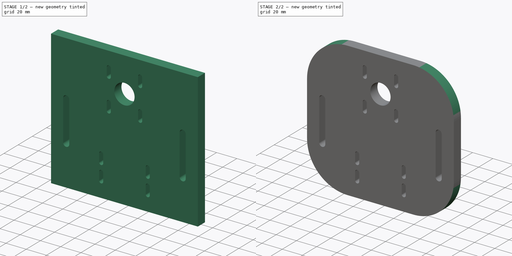
[diagram: build sequence overview — one tinted view per stage of 2, left to right]
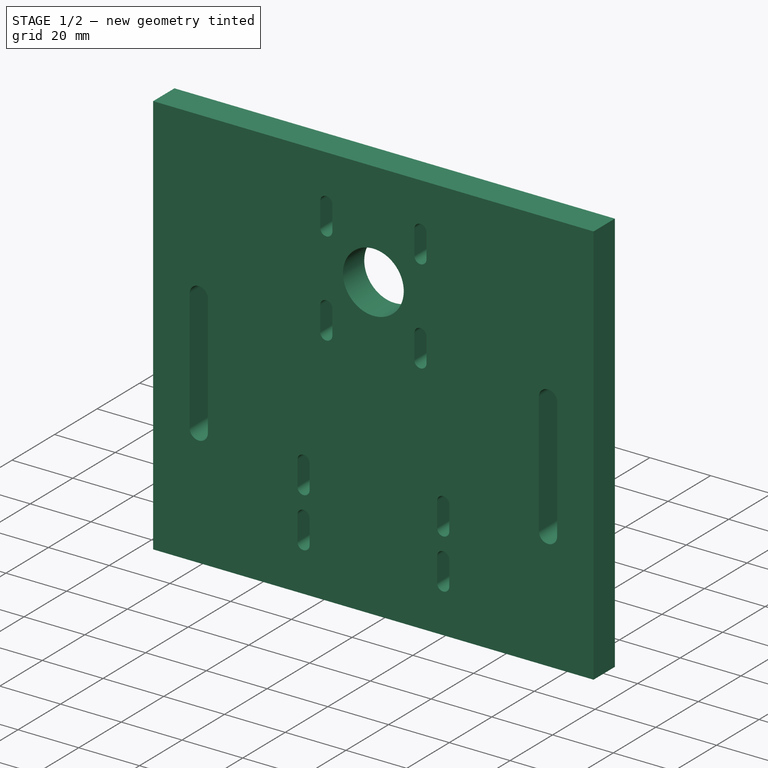
[diagram: stage 1 of 2 — iso view after this stage's code; geometry added in this stage tinted green]
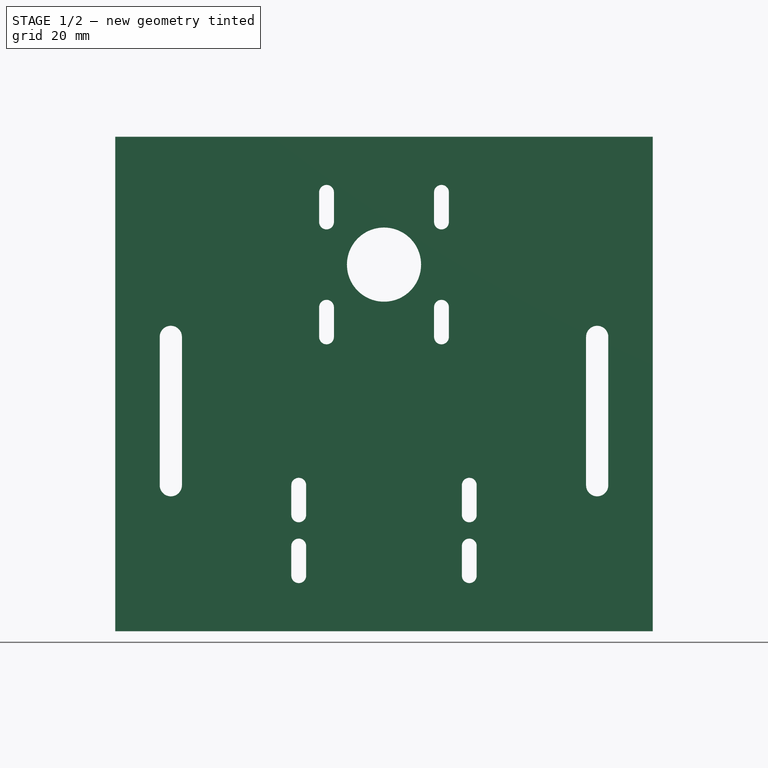
[diagram: stage 1 of 2 — front view after this stage's code; geometry added in this stage tinted green]
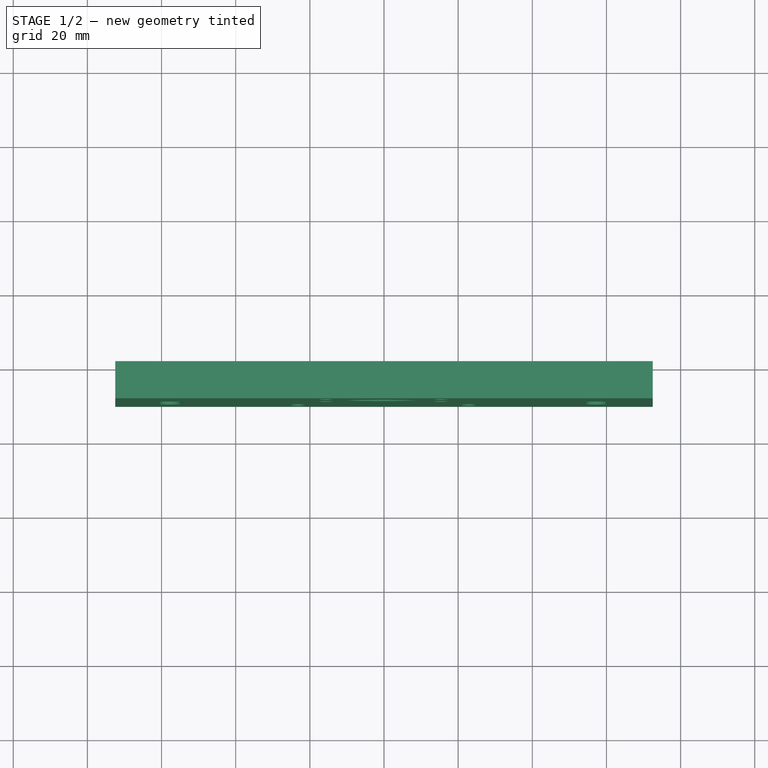
[diagram: stage 1 of 2 — top view after this stage's code; geometry added in this stage tinted green]
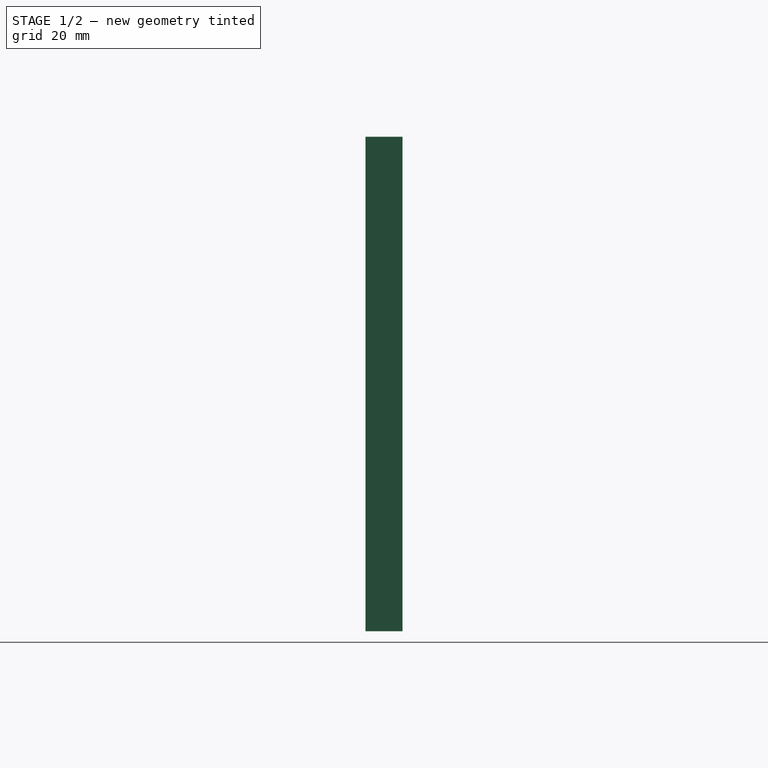
[diagram: stage 1 of 2 — right view after this stage's code; geometry added in this stage tinted green]
FCSTD DOCUMENT  (FreeCAD 0.19R22960 (Git))
Label: mounting-plate
License: All rights reserved
LicenseURL: http://en.wikipedia.org/wiki/All_rights_reserved
objects: Sketcher::SketchObject×1, Spreadsheet::Sheet×1, PartDesign::Pad×1, PartDesign::Fillet×1, PartDesign::Body×1, TechDraw::DrawSVGTemplate×1, TechDraw::DrawViewPart×1, TechDraw::DrawPage×1
note: 6 computed .brp shape members not serialized (recipe doc carries the construction recipe); baked Part::Feature solids carry a one-line shape summary decoded from their .brp

FEATURE [Sketcher::SketchObject] Sketch
  MapMode = 5
  Placement = pos=(0,0,0) rot=(1,0,0;1.5708rad)
  Support = -> [XZ_Plane]
  expr: Constraints[40] = Spreadsheet.nema_holes_dia
  expr: Constraints[50] = 31mm
  expr: Constraints[41] = Spreadsheet.nema_holes_dia * 2
  expr: Constraints[130] = Spreadsheet.wheel_holes_dia
  sketch-geometry (85):
    g0: ArcOfCircle CenterX=-15.5 CenterY=59 CenterZ=0 NormalX=0 NormalY=0 NormalZ=1 AngleXU=0 Radius=2 StartAngle=-1.8e-15 EndAngle=3.14159
    g1: ArcOfCircle CenterX=-15.5 CenterY=51 CenterZ=0 NormalX=0 NormalY=0 NormalZ=1 AngleXU=0 Radius=2 StartAngle=3.14159 EndAngle=6.28319
    g2: LineSegment StartX=-17.5 StartY=59 StartZ=0 EndX=-17.5 EndY=51 EndZ=0
    g3: LineSegment StartX=-13.5 StartY=59 StartZ=0 EndX=-13.5 EndY=51 EndZ=0
    g4: ArcOfCircle CenterX=15.5 CenterY=59 CenterZ=0 NormalX=0 NormalY=0 NormalZ=1 AngleXU=0 Radius=2 StartAngle=2e-16 EndAngle=3.14159
    g5: ArcOfCircle CenterX=15.5 CenterY=51 CenterZ=0 NormalX=0 NormalY=0 NormalZ=1 AngleXU=0 Radius=2 StartAngle=3.14159 EndAngle=6.28319
    g6: LineSegment StartX=13.5 StartY=59 StartZ=0 EndX=13.5 EndY=51 EndZ=0
    g7: LineSegment StartX=17.5 StartY=59 StartZ=0 EndX=17.5 EndY=51 EndZ=0
    g8: ArcOfCircle CenterX=-15.5 CenterY=28 CenterZ=0 NormalX=0 NormalY=0 NormalZ=1 AngleXU=0 Radius=2 StartAngle=1.7882e-12 EndAngle=3.14159
    g9: ArcOfCircle CenterX=-15.5 CenterY=20 CenterZ=0 NormalX=0 NormalY=0 NormalZ=1 AngleXU=0 Radius=2 StartAngle=3.14159 EndAngle=6.28319
    g10: LineSegment StartX=-17.5 StartY=28 StartZ=0 EndX=-17.5 EndY=20 EndZ=0
    g11: LineSegment StartX=-13.5 StartY=28 StartZ=0 EndX=-13.5 EndY=20 EndZ=0
    g12: ArcOfCircle CenterX=15.5 CenterY=28 CenterZ=0 NormalX=0 NormalY=0 NormalZ=1 AngleXU=0 Radius=2 StartAngle=1e-16 EndAngle=3.14159
    g13: ArcOfCircle CenterX=15.5 CenterY=20 CenterZ=0 NormalX=0 NormalY=0 NormalZ=1 AngleXU=0 Radius=2 StartAngle=3.14159 EndAngle=6.28319
    g14: LineSegment StartX=13.5 StartY=28 StartZ=0 EndX=13.5 EndY=20 EndZ=0
    g15: LineSegment StartX=17.5 StartY=28 StartZ=0 EndX=17.5 EndY=20 EndZ=0
    g16: LineSegment [constr] StartX=-17.5 StartY=59 StartZ=0 EndX=-13.5 EndY=59 EndZ=0
    g17: LineSegment [constr] StartX=-15.5 StartY=59 StartZ=0 EndX=-15.5 EndY=51 EndZ=0
    g18: LineSegment [constr] StartX=13.5 StartY=59 StartZ=0 EndX=17.5 EndY=59 EndZ=0
    g19: LineSegment [constr] StartX=15.5 StartY=59 StartZ=0 EndX=15.5 EndY=51 EndZ=0
    g20: LineSegment [constr] StartX=-17.5 StartY=28 StartZ=0 EndX=-13.5 EndY=28 EndZ=0
    g21: LineSegment [constr] StartX=-15.5 StartY=28 StartZ=0 EndX=-15.5 EndY=20 EndZ=0
    g22: LineSegment [constr] StartX=13.5 StartY=28 StartZ=0 EndX=17.5 EndY=28 EndZ=0
    g23: LineSegment [constr] StartX=15.5 StartY=28 StartZ=0 EndX=15.5 EndY=20 EndZ=0
    g24: LineSegment [constr] StartX=-15.5 StartY=59 StartZ=0 EndX=15.5 EndY=59 EndZ=0
    g25: GeomPoint X=-15.5 Y=55 Z=0
    g26: GeomPoint X=-15.5 Y=24 Z=0
    g27: LineSegment [constr] StartX=-15.5 StartY=55 StartZ=0 EndX=-15.5 EndY=24 EndZ=0
    g28: LineSegment [constr] StartX=-15.5 StartY=28 StartZ=0 EndX=15.5 EndY=28 EndZ=0
    g29: ArcOfCircle CenterX=-23 CenterY=-20 CenterZ=0 NormalX=0 NormalY=0 NormalZ=1 AngleXU=0 Radius=2 StartAngle=-9e-16 EndAngle=3.14159
    g30: ArcOfCircle CenterX=-23 CenterY=-28 CenterZ=0 NormalX=0 NormalY=0 NormalZ=1 AngleXU=0 Radius=2 StartAngle=3.14159 EndAngle=6.28319
    g31: LineSegment StartX=-25 StartY=-20 StartZ=0 EndX=-25 EndY=-28 EndZ=0
    g32: LineSegment StartX=-21 StartY=-20 StartZ=0 EndX=-21 EndY=-28 EndZ=0
    g33: LineSegment [constr] StartX=-25 StartY=-20 StartZ=0 EndX=-21 EndY=-20 EndZ=0
    g34: LineSegment [constr] StartX=-23 StartY=-20 StartZ=0 EndX=-23 EndY=-28 EndZ=0
    g35: ArcOfCircle CenterX=23 CenterY=-20 CenterZ=0 NormalX=0 NormalY=0 NormalZ=1 AngleXU=0 Radius=2 StartAngle=-9e-16 EndAngle=3.14159
    g36: ArcOfCircle CenterX=23 CenterY=-28 CenterZ=0 NormalX=0 NormalY=0 NormalZ=1 AngleXU=0 Radius=2 StartAngle=3.14159 EndAngle=6.28319
    g37: LineSegment StartX=21 StartY=-20 StartZ=0 EndX=21 EndY=-28 EndZ=0
    g38: LineSegment StartX=25 StartY=-20 StartZ=0 EndX=25 EndY=-28 EndZ=0
    g39: ArcOfCircle CenterX=-23 CenterY=-36.4 CenterZ=0 NormalX=0 NormalY=0 NormalZ=1 AngleXU=0 Radius=2 StartAngle=1.7e-15 EndAngle=3.14159
    g40: ArcOfCircle CenterX=-23 CenterY=-44.4 CenterZ=0 NormalX=0 NormalY=0 NormalZ=1 AngleXU=0 Radius=2 StartAngle=3.14159 EndAngle=6.28319
    g41: LineSegment StartX=-25 StartY=-36.4 StartZ=0 EndX=-25 EndY=-44.4 EndZ=0
    g42: LineSegment StartX=-21 StartY=-36.4 StartZ=0 EndX=-21 EndY=-44.4 EndZ=0
    g43: ArcOfCircle CenterX=23 CenterY=-36.4 CenterZ=0 NormalX=0 NormalY=0 NormalZ=1 AngleXU=0 Radius=2 StartAngle=1.8e-15 EndAngle=3.14159
    g44: ArcOfCircle CenterX=23 CenterY=-44.4 CenterZ=0 NormalX=0 NormalY=0 NormalZ=1 AngleXU=0 Radius=2 StartAngle=3.14159 EndAngle=6.28319
    g45: LineSegment StartX=21 StartY=-36.4 StartZ=0 EndX=21 EndY=-44.4 EndZ=0
    g46: LineSegment StartX=25 StartY=-36.4 StartZ=0 EndX=25 EndY=-44.4 EndZ=0
    g47: LineSegment [constr] StartX=21 StartY=-20 StartZ=0 EndX=25 EndY=-20 EndZ=0
    g48: LineSegment [constr] StartX=23 StartY=-20 StartZ=0 EndX=23 EndY=-28 EndZ=0
    g49: LineSegment [constr] StartX=-25 StartY=-36.4 StartZ=0 EndX=-21 EndY=-36.4 EndZ=0
    g50: LineSegment [constr] StartX=-23 StartY=-36.4 StartZ=0 EndX=-23 EndY=-44.4 EndZ=0
    g51: LineSegment [constr] StartX=21 StartY=-36.4 StartZ=0 EndX=25 EndY=-36.4 EndZ=0
    g52: LineSegment [constr] StartX=23 StartY=-36.4 StartZ=0 EndX=23 EndY=-44.4 EndZ=0
    g53: LineSegment [constr] StartX=-23 StartY=-20 StartZ=0 EndX=23 EndY=-20 EndZ=0
    g54: GeomPoint X=-23 Y=-24 Z=0
    g55: GeomPoint X=-23 Y=-40.4 Z=0
    g56: LineSegment [constr] StartX=-23 StartY=-24 StartZ=0 EndX=-23 EndY=-40.4 EndZ=0
    g57: LineSegment [constr] StartX=-23 StartY=-36.4 StartZ=0 EndX=23 EndY=-36.4 EndZ=0
    g58: ArcOfCircle CenterX=-57.5 CenterY=20 CenterZ=0 NormalX=0 NormalY=0 NormalZ=1 AngleXU=0 Radius=3 StartAngle=1.7362e-12 EndAngle=3.14159
    g59: ArcOfCircle CenterX=-57.5 CenterY=-20 CenterZ=0 NormalX=0 NormalY=0 NormalZ=1 AngleXU=0 Radius=3 StartAngle=3.14159 EndAngle=6.28319
    g60: LineSegment StartX=-60.5 StartY=20 StartZ=0 EndX=-60.5 EndY=-20 EndZ=0
    g61: LineSegment StartX=-54.5 StartY=20 StartZ=0 EndX=-54.5 EndY=-20 EndZ=0
    g62: LineSegment [constr] StartX=-60.5 StartY=20 StartZ=0 EndX=-54.5 EndY=20 EndZ=0
    g63: LineSegment [constr] StartX=-57.5 StartY=20 StartZ=0 EndX=-57.5 EndY=-20 EndZ=0
    g64: ArcOfCircle CenterX=57.5 CenterY=20 CenterZ=0 NormalX=0 NormalY=0 NormalZ=1 AngleXU=0 Radius=3 StartAngle=0 EndAngle=3.14159
    g65: ArcOfCircle CenterX=57.5 CenterY=-20 CenterZ=0 NormalX=0 NormalY=0 NormalZ=1 AngleXU=0 Radius=3 StartAngle=3.14159 EndAngle=6.28319
    g66: LineSegment StartX=54.5 StartY=20 StartZ=0 EndX=54.5 EndY=-20 EndZ=0
    g67: LineSegment StartX=60.5 StartY=20 StartZ=0 EndX=60.5 EndY=-20 EndZ=0
    g68: LineSegment [constr] StartX=54.5 StartY=20 StartZ=0 EndX=60.5 EndY=20 EndZ=0
    g69: LineSegment [constr] StartX=57.5 StartY=20 StartZ=0 EndX=57.5 EndY=-20 EndZ=0
    g70: Circle CenterX=0 CenterY=39.5 CenterZ=0 NormalX=0 NormalY=0 NormalZ=1 AngleXU=0 Radius=10
    g71: LineSegment [constr] StartX=-15.5 StartY=20 StartZ=0 EndX=-57.5 EndY=20 EndZ=0
    g72: LineSegment [constr] StartX=15.5 StartY=20 StartZ=0 EndX=57.5 EndY=20 EndZ=0
    g73: LineSegment [constr] StartX=-57.5 StartY=-20 StartZ=0 EndX=-23 EndY=-20 EndZ=0
    g74: LineSegment [constr] StartX=0 StartY=28 StartZ=0 EndX=0 EndY=59 EndZ=0
    g75: LineSegment StartX=-72.5 StartY=74 StartZ=0 EndX=72.5 EndY=74 EndZ=0
    g76: LineSegment StartX=72.5 StartY=74 StartZ=0 EndX=72.5 EndY=-59.4 EndZ=0
    g77: LineSegment StartX=72.5 StartY=-59.4 StartZ=0 EndX=-72.5 EndY=-59.4 EndZ=0
    g78: LineSegment StartX=-72.5 StartY=-59.4 StartZ=0 EndX=-72.5 EndY=74 EndZ=0
    g79: LineSegment [constr] StartX=-57.5 StartY=0 StartZ=0 EndX=-72.5 EndY=0 EndZ=0
    g80: LineSegment [constr] StartX=57.5 StartY=0 StartZ=0 EndX=72.5 EndY=0 EndZ=0
    g81: LineSegment [constr] StartX=-15.5 StartY=59 StartZ=0 EndX=-15.5 EndY=74 EndZ=0
    g82: LineSegment [constr] StartX=-23 StartY=-44.4 StartZ=0 EndX=-23 EndY=-59.4 EndZ=0
    g83: LineSegment [constr] StartX=-15.5 StartY=20 StartZ=0 EndX=0 EndY=20 EndZ=0
    g84: LineSegment [constr] StartX=0 StartY=20 StartZ=0 EndX=0 EndY=59 EndZ=0
  constraints (195):
    c: Tangent(g0,g3)
    c: Tangent(g0,g2)
    c: Tangent(g2,g1)
    c: Tangent(g3,g1)
    c: Vertical(g2)
    c: Equal(g0,g1)
    c: Tangent(g4,g7)
    c: Tangent(g4,g6)
    c: Tangent(g6,g5)
    c: Tangent(g7,g5)
    c: Vertical(g6)
    c: Equal(g4,g5)
    c: Tangent(g8,g11)
    c: Tangent(g8,g10)
    c: Tangent(g10,g9)
    c: Tangent(g11,g9)
    c: Vertical(g10)
    c: Equal(g8,g9)
    c: Tangent(g12,g15)
    c: Tangent(g12,g14)
    c: Tangent(g14,g13)
    c: Tangent(g15,g13)
    c: Vertical(g14)
    c: Equal(g12,g13)
    c: Coincident(g16,g0)
    c: Coincident(g16,g0)
    c: Coincident(g17,g0)
    c: Coincident(g17,g1)
    c: Coincident(g18,g4)
    c: Coincident(g18,g4)
    c: Coincident(g19,g4)
    c: Coincident(g19,g5)
    c: Coincident(g20,g8)
    c: Coincident(g20,g8)
    c: Coincident(g21,g8)
    c: Coincident(g21,g9)
    c: Coincident(g22,g12)
    c: Coincident(g22,g12)
    c: Coincident(g23,g12)
    c: Coincident(g23,g13)
    c: DistanceX(g16,g16) = 4
    c: DistanceY(g17,g17) = 8
    c: Equal(g16,g18)
    c: Equal(g18,g20)
    c: Equal(g20,g22)
    c: Equal(g17,g19)
    c: Equal(g19,g21)
    c: Equal(g21,g23)
    c: Coincident(g24,g0)
    c: Coincident(g24,g4)
    c: DistanceX(g24,g24) = 31
    c: Symmetric(g0,g4,g-2)
    c: Symmetric(g17,g17,g25)
    c: Symmetric(g21,g21,g26)
    c: Coincident(g27,g25)
    c: Coincident(g27,g26)
    c: Equal(g24,g27)
    c: Coincident(g28,g8)
    c: Coincident(g28,g12)
    c: Horizontal(g28)
    c: Equal(g28,g24)
    c: Tangent(g29,g32)
    c: Tangent(g29,g31)
    c: Tangent(g31,g30)
    c: Tangent(g32,g30)
    c: Vertical(g31)
    c: Equal(g29,g30)
    c: Coincident(g33,g29)
    c: Coincident(g33,g29)
    c: Coincident(g34,g29)
    c: Coincident(g34,g30)
    c: Equal(g33,g16)
    c: Equal(g34,g17)
    c: Tangent(g35,g38)
    c: Tangent(g35,g37)
    c: Tangent(g37,g36)
    c: Tangent(g38,g36)
    c: Vertical(g37)
    c: Equal(g35,g36)
    c: Tangent(g39,g42)
    c: Tangent(g39,g41)
    c: Tangent(g41,g40)
    c: Tangent(g42,g40)
    c: Vertical(g41)
    c: Equal(g39,g40)
    c: Tangent(g43,g46)
    c: Tangent(g43,g45)
    c: Tangent(g45,g44)
    c: Tangent(g46,g44)
    c: Vertical(g45)
    c: Equal(g43,g44)
    c: Coincident(g47,g35)
    c: Coincident(g47,g35)
    c: Coincident(g48,g35)
    c: Coincident(g48,g36)
    c: Coincident(g49,g39)
    c: Coincident(g49,g39)
    c: Coincident(g50,g39)
    c: Coincident(g50,g40)
    c: Coincident(g51,g43)
    c: Coincident(g51,g43)
    c: Coincident(g52,g43)
    c: Coincident(g52,g44)
    c: Equal(g33,g47)
    c: Equal(g47,g51)
    c: Equal(g51,g49)
    c: Equal(g34,g48)
    c: Equal(g48,g50)
    c: Equal(g50,g52)
    c: Coincident(g53,g29)
    c: Coincident(g53,g35)
    c: DistanceX(g53,g53) = 46
    c: Symmetric(g34,g34,g54)
    c: Symmetric(g50,g50,g55)
    c: Coincident(g56,g54)
    c: Coincident(g56,g55)
    c: Vertical(g56)
    c: DistanceY(g56,g56) = 16.4
    c: Symmetric(g29,g35,g-2)
    c: Coincident(g57,g39)
    c: Coincident(g57,g43)
    c: Horizontal(g57)
    c: Equal(g57,g53)
    c: Tangent(g58,g61)
    c: Tangent(g58,g60)
    c: Tangent(g60,g59)
    c: Tangent(g61,g59)
    c: Vertical(g60)
    c: Coincident(g62,g58)
    c: Coincident(g62,g58)
    c: DistanceX(g62,g62) = 6
    c: Coincident(g63,g58)
    c: Coincident(g63,g59)
    c: DistanceY(g63,g63) = 40
    c: Tangent(g64,g67)
    c: Tangent(g64,g66)
    c: Tangent(g66,g65)
    c: Tangent(g67,g65)
    c: Vertical(g66)
    c: Coincident(g68,g64)
    c: Coincident(g68,g64)
    c: Coincident(g69,g64)
    c: Coincident(g69,g65)
    c: Equal(g62,g68)
    c: Equal(g63,g69)
    c: Symmetric(g65,g64,g-1)
    c: Symmetric(g58,g59,g-1)
    c: Vertical(g27)
    c: PointOnObject(g70,g-2)
    c: Coincident(g71,g9)
    c: Coincident(g71,g58)
    c: Horizontal(g71)
    c: DistanceX(g71,g71) = 42
    c: Coincident(g72,g13)
    c: Coincident(g72,g64)
    c: Equal(g72,g71)
    c: Coincident(g73,g59)
    c: Coincident(g73,g29)
    c: Horizontal(g73)
    c: PointOnObject(g74,g28)
    c: Vertical(g74)
    c: Diameter(g70) = 20
    c: Coincident(g75,g76)
    c: Coincident(g76,g77)
    c: Coincident(g77,g78)
    c: Coincident(g78,g75)
    c: Horizontal(g75)
    c: Horizontal(g77)
    c: Vertical(g76)
    c: Vertical(g78)
    c: PointOnObject(g79,g78)
    c: Horizontal(g79)
    c: PointOnObject(g79,g63)
    c: DistanceX(g79,g79) = 15
    c: PointOnObject(g80,g76)
    c: Horizontal(g80)
    c: Equal(g80,g79)
    c: PointOnObject(g80,g69)
    c: Coincident(g81,g0)
    c: PointOnObject(g81,g75)
    c: Vertical(g81)
    c: Equal(g79,g81)
    c: Coincident(g82,g40)
    c: PointOnObject(g82,g77)
    c: Vertical(g82)
    c: Equal(g82,g79)
    c: PointOnObject(g74,g24)
    c: PointOnObject(g79,g-1)
    c: PointOnObject(g80,g-1)
    c: Coincident(g83,g9)
    c: PointOnObject(g83,g-2)
    c: Horizontal(g83)
    c: Coincident(g84,g83)
    c: Coincident(g84,g74)
    c: Symmetric(g84,g84,g70)
FEATURE [Spreadsheet::Sheet] Spreadsheet
  cells = A1=material_thickness; B1(material_thickness)==10mm; A2=nema_spacing_x; B2(nema_spacing_x)==31mm; A3=nema_spacing_y; B3(nema_spacing_y)==31mm; A4=nema_holes_dia; B4(nema_holes_dia)==4mm; A5=solenoid_spacing_x; A6=solenoid_spacing_y; A7=solenoid_holes_dia; B7==3mm; A8=wheel_spacing_x; A9=wheel_spacing_y; A10=wheel_holes_dia; B10(wheel_holes_dia)==6mm
FEATURE [PartDesign::Pad] Pad
  Direction = (1,1,1)
  Length = 10
  Length2 = 100
  Placement = pos=(0,0,0) rot=(1,0,0;1.5708rad)
  Profile = -> Sketch
  Type = 0
  expr: Length = Spreadsheet.material_thickness
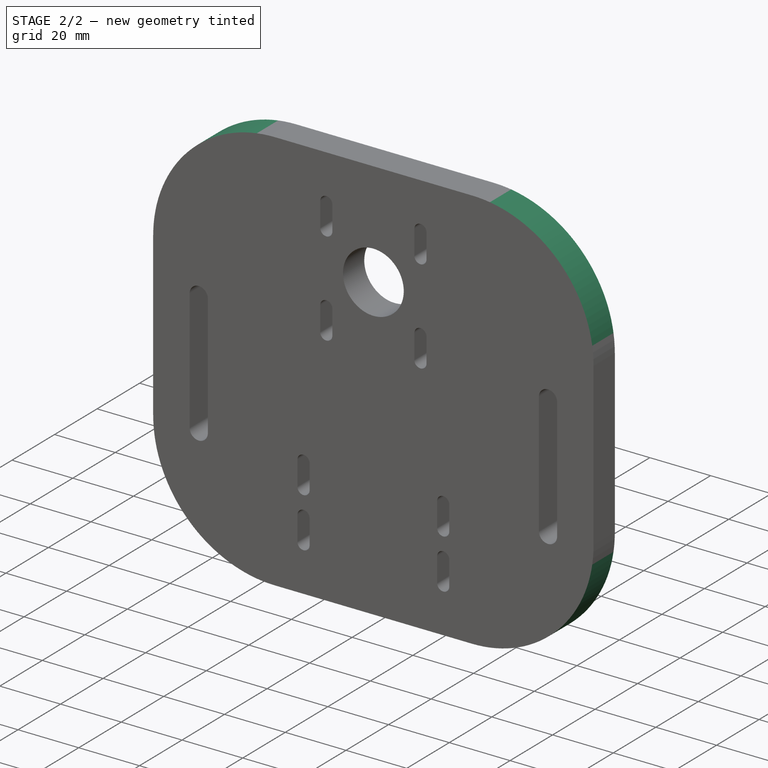
[diagram: stage 2 of 2 — iso view after this stage's code; geometry added in this stage tinted green]
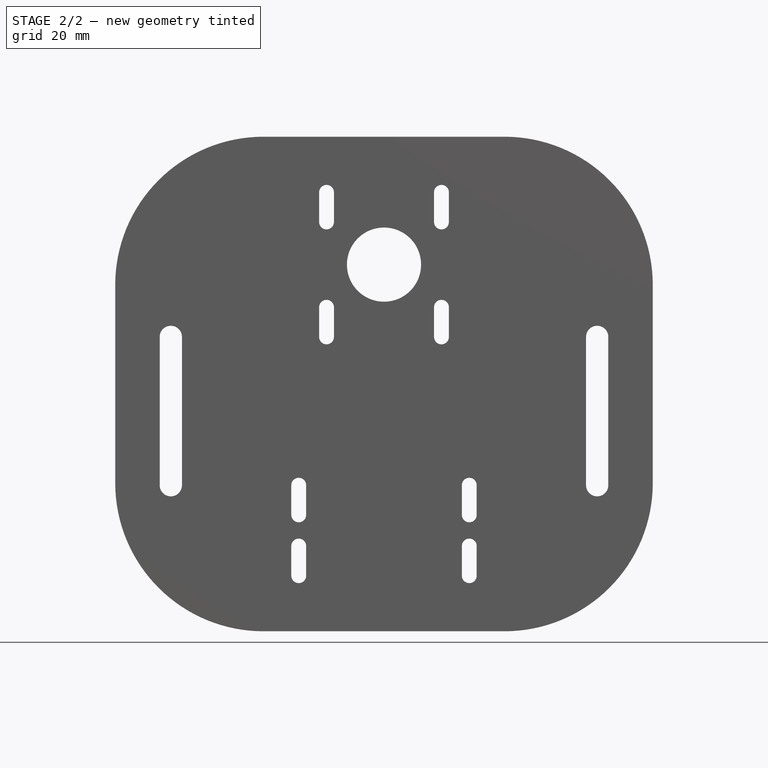
[diagram: stage 2 of 2 — front view after this stage's code; geometry added in this stage tinted green]
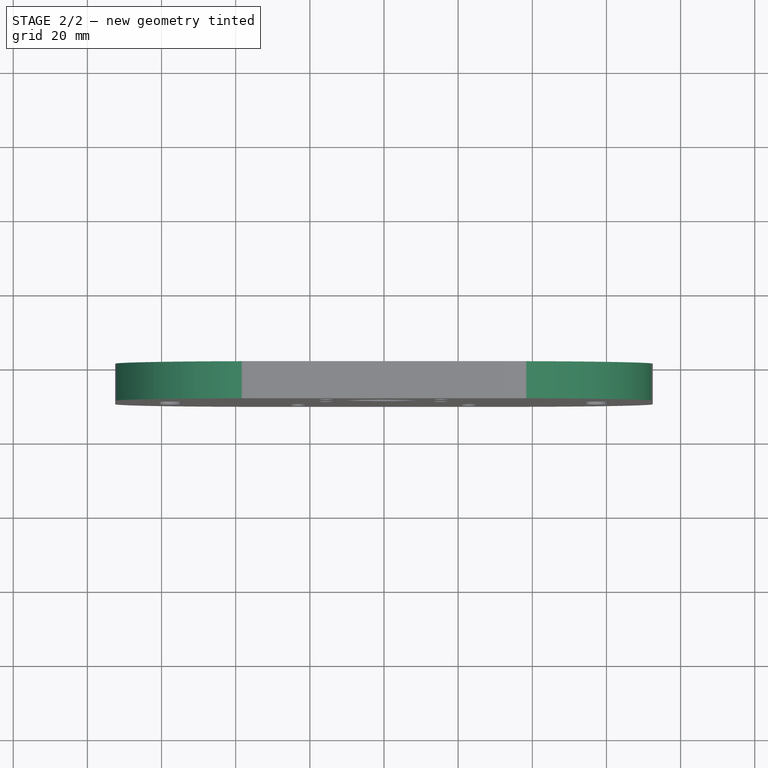
[diagram: stage 2 of 2 — top view after this stage's code; geometry added in this stage tinted green]
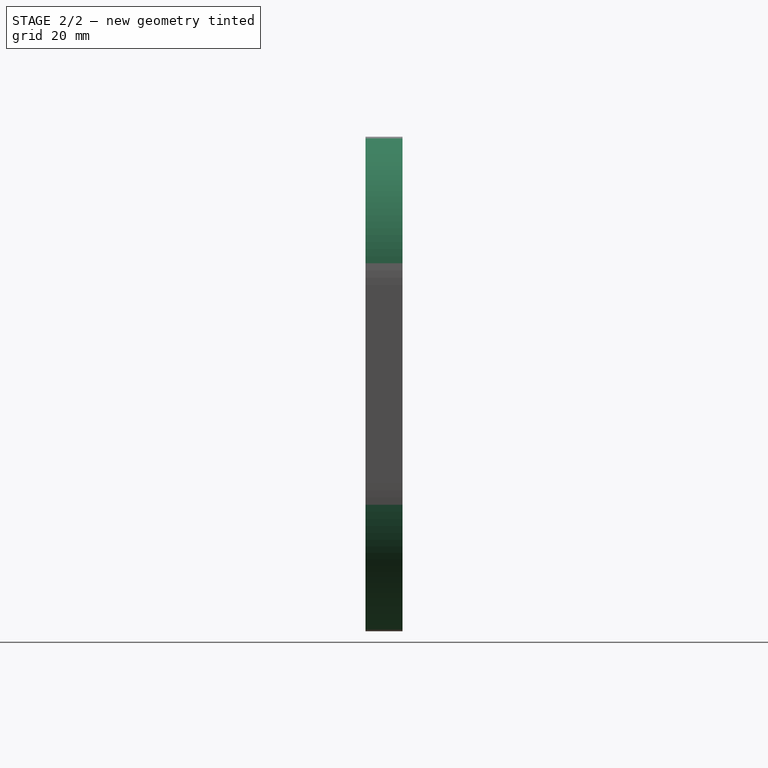
[diagram: stage 2 of 2 — right view after this stage's code; geometry added in this stage tinted green]
FEATURE [PartDesign::Fillet] Fillet
  Base = -> Pad [Edge1,Edge2,Edge5,Edge8]
  BaseFeature = -> Pad
  Placement = pos=(0,0,0) rot=(1,0,0;1.5708rad)
  Radius = 40
  SupportTransform = false
FEATURE [PartDesign::Body] Body
  Group = -> [Sketch,Pad,Fillet]
  Origin = -> Origin
  Tip = -> Fillet
FEATURE [TechDraw::DrawSVGTemplate] Template
  Height = 210
  Orientation = 1
  Width = 297
FEATURE [TechDraw::DrawViewPart] View
  CoarseView = false
  Direction = (0,-1,0)
  Focus = 100
  HardHidden = false
  IsoCount = 0
  IsoHidden = false
  IsoVisible = false
  LockPosition = false
  Perspective = false
  Rotation = 0
  ScaleType = 0
  SeamHidden = false
  SeamVisible = true
  SmoothHidden = false
  SmoothVisible = true
  Source = -> [Fillet]
  X = 148.5
  XDirection = (1,0,0)
  Y = 105
FEATURE [TechDraw::DrawPage] Page
  KeepUpdated = true
  NextBalloonIndex = 1
  ProjectionType = 0
  Template = -> Template
  Views = -> [View]
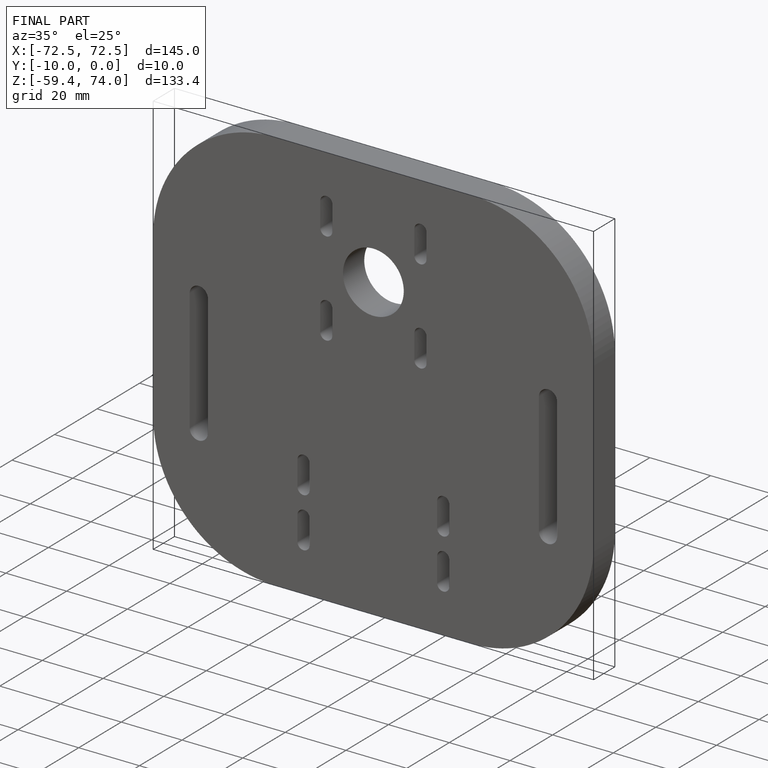
[diagram: finished part — iso view with bounding-box wireframe]
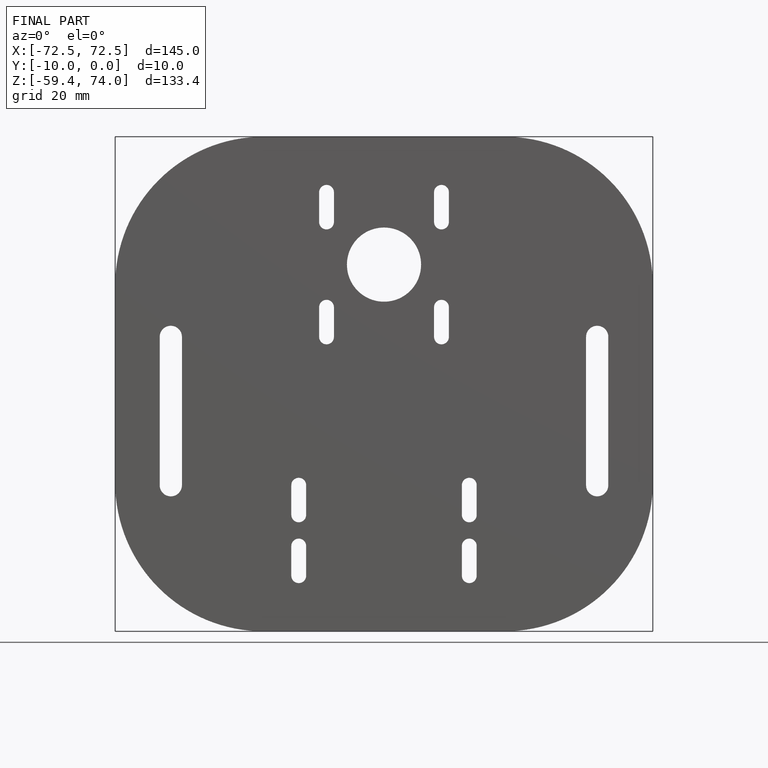
[diagram: finished part — front view with bounding-box wireframe]
